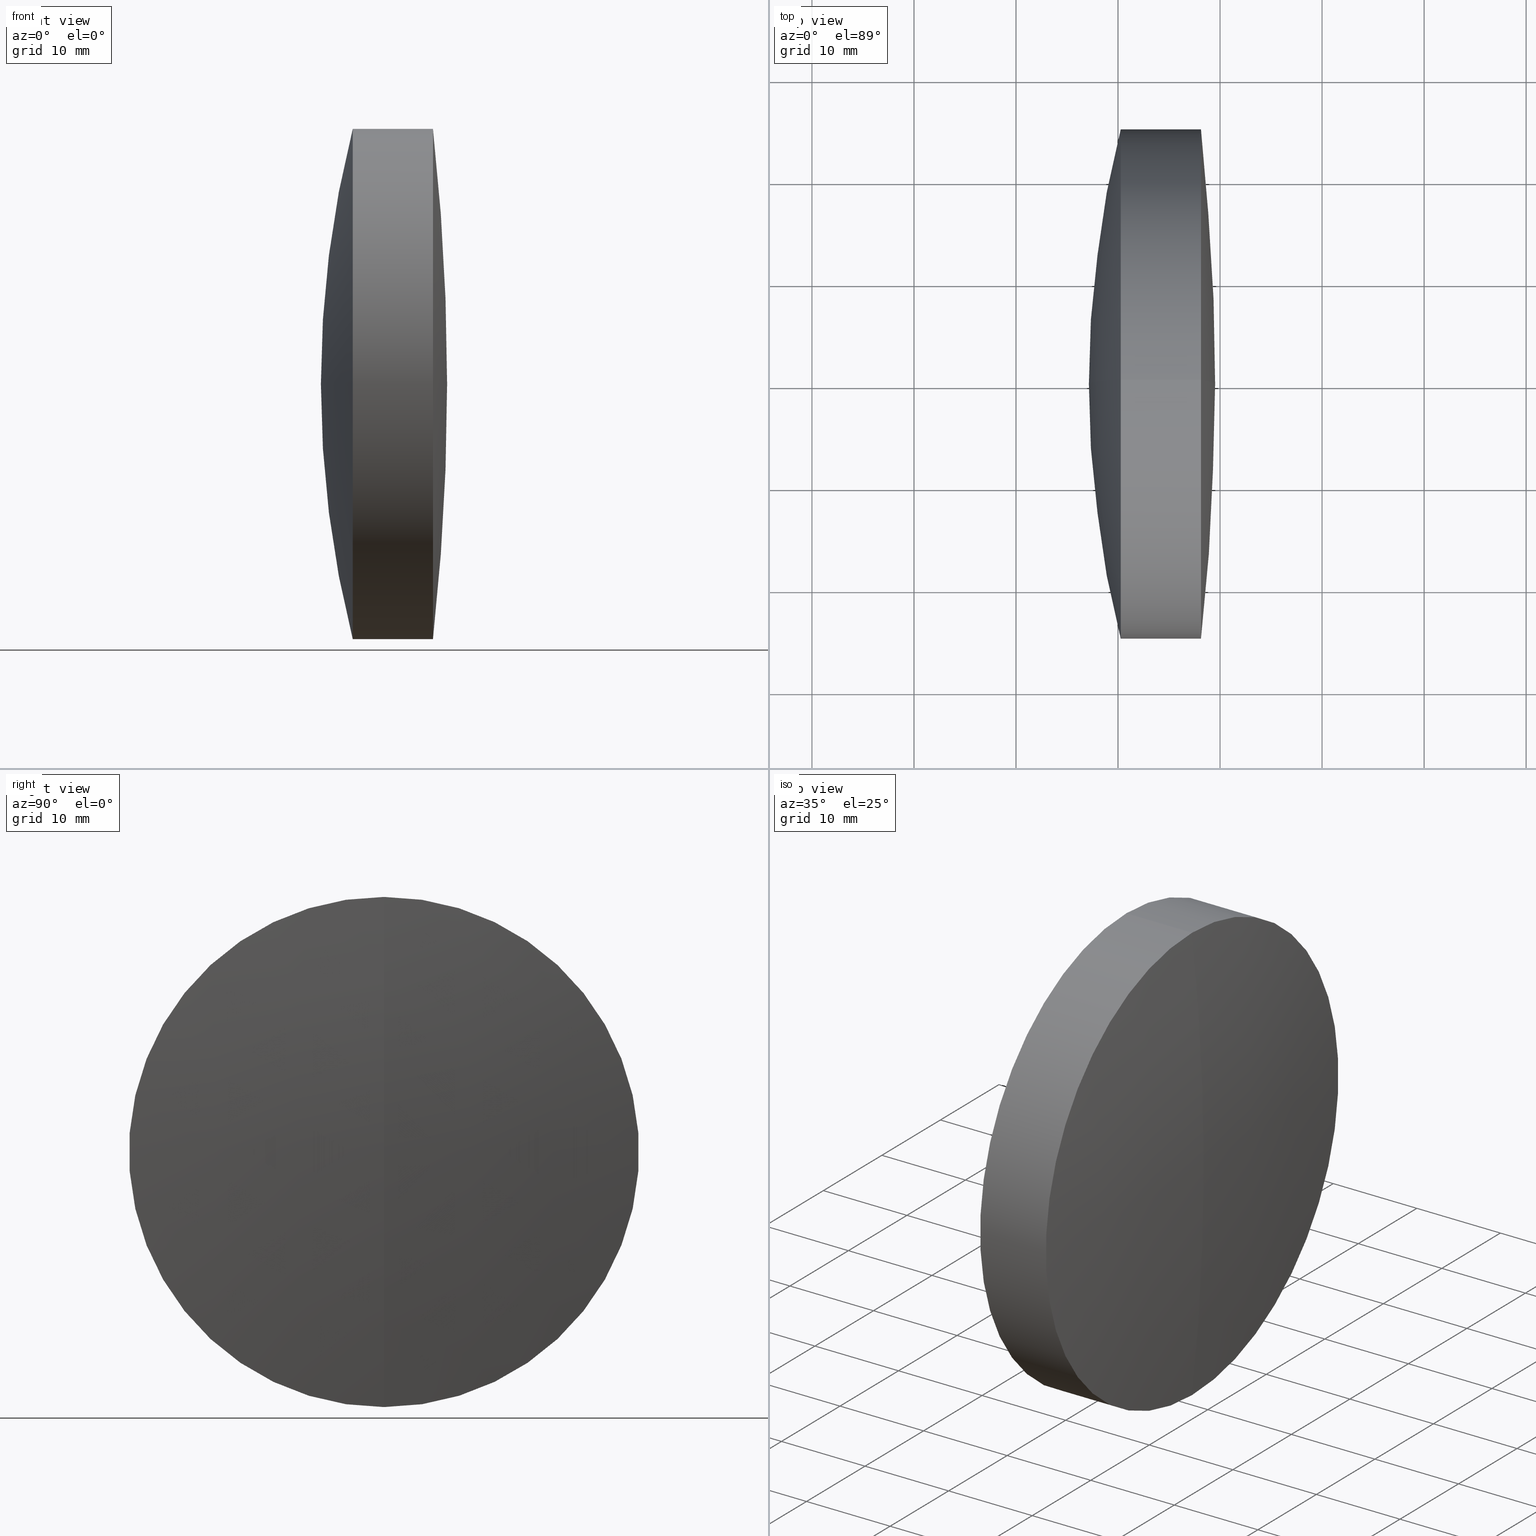
[diagram: canonical four-view strip — front | top / right | iso, engineering-drawing reading convention]
A machine part, canonical four-view strip (front | top / right | iso — engineering-drawing reading convention). The complete STEP part file that produces these views, byte-faithful:
ISO-10303-21;
HEADER;
FILE_DESCRIPTION (( 'STEP AP214' ),
    '1' );
FILE_NAME ('145080.STEP',
    '2019-05-16T05:03:50',
    ( 'user' ),
    ( '΢���й�' ),
    'SwSTEP 2.0',
    'SolidWorks 2016',
    '' );
FILE_SCHEMA (( 'AUTOMOTIVE_DESIGN' ));
ENDSEC;

DATA;
#1 = ADVANCED_FACE ( 'NONE', ( #125 ), #185, .T. ) ;
#2 = CYLINDRICAL_SURFACE ( 'NONE', #263, 24.99999999999997500 ) ;
#3 =( NAMED_UNIT ( * ) SI_UNIT ( $, .STERADIAN. ) SOLID_ANGLE_UNIT ( ) );
#4 = DIRECTION ( 'NONE',  ( 0.0000000000000000000, 0.0000000000000000000, 1.000000000000000000 ) ) ;
#5 = FACE_OUTER_BOUND ( 'NONE', #29, .T. ) ;
#6 = DIRECTION ( 'NONE',  ( 0.0000000000000000000, -1.000000000000000000, 0.0000000000000000000 ) ) ;
#7 = DIRECTION ( 'NONE',  ( -0.0000000000000000000, 1.000000000000000000, 1.224646799147353200E-016 ) ) ;
#8 = CARTESIAN_POINT ( 'NONE',  ( 232.7655238104919100, 0.0000000000000000000, 0.0000000000000000000 ) ) ;
#9 = EDGE_CURVE ( 'NONE', #106, #64, #21, .T. ) ;
#10 =( NAMED_UNIT ( * ) SI_UNIT ( $, .STERADIAN. ) SOLID_ANGLE_UNIT ( ) );
#11 = CARTESIAN_POINT ( 'NONE',  ( 328.8517151953939200, 0.0000000000000000000, -8.224809557768397600E-014 ) ) ;
#12 = MANIFOLD_SOLID_BREP ( '��ת3', #151 ) ;
#13 = DIRECTION ( 'NONE',  ( 0.0000000000000000000, 0.0000000000000000000, -1.000000000000000000 ) ) ;
#14 = EDGE_LOOP ( 'NONE', ( #250, #194, #217, #342 ) ) ;
#15 = CARTESIAN_POINT ( 'NONE',  ( 124.5233095260452400, 0.0000000000000000000, 24.99999999999997500 ) ) ;
#16 = EDGE_CURVE ( 'NONE', #106, #280, #146, .T. ) ;
#17 = FACE_OUTER_BOUND ( 'NONE', #42, .T. ) ;
#18 = DIRECTION ( 'NONE',  ( -1.000000000000000000, -0.0000000000000000000, -0.0000000000000000000 ) ) ;
#19 = ORIENTED_EDGE ( 'NONE', *, *, #9, .F. ) ;
#20 = CIRCLE ( 'NONE', #294, 226.2409999999999900 ) ;
#21 = CIRCLE ( 'NONE', #259, 101.7070000000000400 ) ;
#22 = EDGE_CURVE ( 'NONE', #116, #274, #266, .T. ) ;
#23 = DIRECTION ( 'NONE',  ( 0.0000000000000000000, 0.0000000000000000000, 1.000000000000000000 ) ) ;
#24 = EDGE_LOOP ( 'NONE', ( #39, #34, #187 ) ) ;
#25 = FACE_OUTER_BOUND ( 'NONE', #197, .T. ) ;
#26 = DIRECTION ( 'NONE',  ( 0.0000000000000000000, 0.0000000000000000000, 1.000000000000000000 ) ) ;
#27 = ADVANCED_FACE ( 'NONE', ( #59 ), #87, .F. ) ;
#28 = CARTESIAN_POINT ( 'NONE',  ( -0.5519199926577972300, 0.0000000000000000000, 0.0000000000000000000 ) ) ;
#29 = EDGE_LOOP ( 'NONE', ( #159, #244, #322 ) ) ;
#30 = SHAPE_DEFINITION_REPRESENTATION ( #122, #245 ) ;
#31 = EDGE_CURVE ( 'NONE', #327, #144, #329, .T. ) ;
#32 = ORIENTED_EDGE ( 'NONE', *, *, #224, .F. ) ;
#33 = SURFACE_STYLE_USAGE ( .BOTH. , #100 ) ;
#34 = ORIENTED_EDGE ( 'NONE', *, *, #343, .T. ) ;
#35 = AXIS2_PLACEMENT_3D ( 'NONE', #92, #93, #95 ) ;
#36 = CLOSED_SHELL ( 'NONE', ( #222, #82, #277, #110, #251, #52 ) ) ;
#37 = CARTESIAN_POINT ( 'NONE',  ( 232.7655238104919400, 0.0000000000000000000, 0.0000000000000000000 ) ) ;
#38 = CYLINDRICAL_SURFACE ( 'NONE', #109, 24.99999999999995000 ) ;
#39 = ORIENTED_EDGE ( 'NONE', *, *, #22, .F. ) ;
#40 = CARTESIAN_POINT ( 'NONE',  ( 161.3467151953938700, 0.0000000000000000000, 7.400657500588618300E-015 ) ) ;
#41 = CARTESIAN_POINT ( 'NONE',  ( 239.5147151953938500, 0.0000000000000000000, 1.385326582429481700E-014 ) ) ;
#42 = EDGE_LOOP ( 'NONE', ( #333, #232, #150 ) ) ;
#43 = EDGE_CURVE ( 'NONE', #144, #280, #223, .T. ) ;
#44 = CARTESIAN_POINT ( 'NONE',  ( 232.7655238104919100, 3.061616997868378700E-015, -24.99999999999995400 ) ) ;
#45 = FACE_OUTER_BOUND ( 'NONE', #24, .T. ) ;
#46 = LINE ( 'NONE', #238, #182 ) ;
#47 = MECHANICAL_DESIGN_GEOMETRIC_PRESENTATION_REPRESENTATION (  '', ( #58 ), #233 ) ;
#48 = APPLICATION_CONTEXT ( 'automotive_design' ) ;
#49 =( LENGTH_UNIT ( ) NAMED_UNIT ( * ) SI_UNIT ( .MILLI., .METRE. ) );
#50 = DIRECTION ( 'NONE',  ( -1.000000000000000000, -0.0000000000000000000, -0.0000000000000000000 ) ) ;
#51 = EDGE_CURVE ( 'NONE', #308, #144, #62, .T. ) ;
#52 = ADVANCED_FACE ( 'NONE', ( #344 ), #192, .T. ) ;
#53 = SURFACE_STYLE_USAGE ( .BOTH. , #258 ) ;
#54 = FILL_AREA_STYLE_COLOUR ( '', #136 ) ;
#55 = DIRECTION ( 'NONE',  ( 0.0000000000000000000, 0.0000000000000000000, 1.000000000000000000 ) ) ;
#56 = DIRECTION ( 'NONE',  ( 0.0000000000000000000, 0.0000000000000000000, 1.000000000000000000 ) ) ;
#57 = VECTOR ( 'NONE', #156, 1000.000000000000000 ) ;
#58 = STYLED_ITEM ( 'NONE', ( #324 ), #12 ) ;
#59 = FACE_OUTER_BOUND ( 'NONE', #111, .T. ) ;
#60 = CARTESIAN_POINT ( 'NONE',  ( 238.1292022998895300, 0.0000000000000000000, 0.0000000000000000000 ) ) ;
#61 = APPLICATION_PROTOCOL_DEFINITION ( 'draft international standard', 'automotive_design', 1998, #94 ) ;
#62 = CIRCLE ( 'NONE', #247, 24.99999999999997200 ) ;
#63 = DIRECTION ( 'NONE',  ( -1.000000000000000000, -0.0000000000000000000, -0.0000000000000000000 ) ) ;
#64 = VERTEX_POINT ( 'NONE', #73 ) ;
#65 = DIRECTION ( 'NONE',  ( 0.0000000000000000000, 0.0000000000000000000, 1.000000000000000000 ) ) ;
#66 = AXIS2_PLACEMENT_3D ( 'NONE', #180, #6, #13 ) ;
#67 = CARTESIAN_POINT ( 'NONE',  ( -0.5519199926577972300, 0.0000000000000000000, 0.0000000000000000000 ) ) ;
#68 = DIRECTION ( 'NONE',  ( -1.000000000000000000, -0.0000000000000000000, -0.0000000000000000000 ) ) ;
#69 = VECTOR ( 'NONE', #206, 1000.000000000000000 ) ;
#70 = COLOUR_RGB ( '',1.000000000000000000, 1.000000000000000000, 1.000000000000000000 ) ;
#71 = DIRECTION ( 'NONE',  ( 0.0000000000000000000, 0.0000000000000000000, -1.000000000000000000 ) ) ;
#72 = EDGE_CURVE ( 'NONE', #260, #272, #74, .T. ) ;
#73 = CARTESIAN_POINT ( 'NONE',  ( 227.1447151953938700, 0.0000000000000000000, -7.602033797763998700E-014 ) ) ;
#74 = CIRCLE ( 'NONE', #221, 24.99999999999997200 ) ;
#75 = SURFACE_STYLE_FILL_AREA ( #255 ) ;
#76 = DIRECTION ( 'NONE',  ( -1.000000000000000000, -0.0000000000000000000, -0.0000000000000000000 ) ) ;
#77 = DIRECTION ( 'NONE',  ( 0.0000000000000000000, 1.000000000000000000, 0.0000000000000000000 ) ) ;
#78 = ORIENTED_EDGE ( 'NONE', *, *, #31, .T. ) ;
#79 = DIRECTION ( 'NONE',  ( 0.0000000000000000000, -1.000000000000000000, 0.0000000000000000000 ) ) ;
#80 = ORIENTED_EDGE ( 'NONE', *, *, #183, .F. ) ;
#81 = CARTESIAN_POINT ( 'NONE',  ( 161.3467151953938700, 0.0000000000000000000, 7.400657500588618300E-015 ) ) ;
#82 = ADVANCED_FACE ( 'NONE', ( #25 ), #2, .T. ) ;
#83 = DIRECTION ( 'NONE',  ( 0.0000000000000000000, 1.000000000000000000, 0.0000000000000000000 ) ) ;
#84 =( LENGTH_UNIT ( ) NAMED_UNIT ( * ) SI_UNIT ( .MILLI., .METRE. ) );
#85 = ORIENTED_EDGE ( 'NONE', *, *, #43, .F. ) ;
#86 = AXIS2_PLACEMENT_3D ( 'NONE', #173, #337, #316 ) ;
#87 = SPHERICAL_SURFACE ( 'NONE', #86, 75.66800000000000600 ) ;
#88 = CIRCLE ( 'NONE', #291, 24.99999999999997500 ) ;
#89 = PRESENTATION_LAYER_ASSIGNMENT (  '', '', ( #58 ) ) ;
#90 = FILL_AREA_STYLE ('',( #54 ) ) ;
#91 =( LENGTH_UNIT ( ) NAMED_UNIT ( * ) SI_UNIT ( .MILLI., .METRE. ) );
#92 = CARTESIAN_POINT ( 'NONE',  ( 161.3467151953938700, 0.0000000000000000000, 7.400657500588618300E-015 ) ) ;
#93 = DIRECTION ( 'NONE',  ( -0.0000000000000000000, 1.000000000000000000, 1.224646799147353200E-016 ) ) ;
#94 = APPLICATION_CONTEXT ( 'automotive_design' ) ;
#95 = DIRECTION ( 'NONE',  ( 0.0000000000000000000, -1.224646799147353500E-016, 1.000000000000000000 ) ) ;
#96 = EDGE_CURVE ( 'NONE', #280, #64, #199, .T. ) ;
#97 = DIRECTION ( 'NONE',  ( 0.0000000000000000000, 0.0000000000000000000, 1.000000000000000000 ) ) ;
#98 = CARTESIAN_POINT ( 'NONE',  ( 124.5233095260452400, 0.0000000000000000000, 0.0000000000000000000 ) ) ;
#99 = SPHERICAL_SURFACE ( 'NONE', #178, 226.2409999999999900 ) ;
#100 = SURFACE_SIDE_STYLE ('',( #285 ) ) ;
#101 = FACE_OUTER_BOUND ( 'NONE', #211, .T. ) ;
#102 = ORIENTED_EDGE ( 'NONE', *, *, #51, .F. ) ;
#103 = AXIS2_PLACEMENT_3D ( 'NONE', #134, #139, #152 ) ;
#104 = ORIENTED_EDGE ( 'NONE', *, *, #96, .F. ) ;
#105 =( NAMED_UNIT ( * ) PLANE_ANGLE_UNIT ( ) SI_UNIT ( $, .RADIAN. ) );
#106 = VERTEX_POINT ( 'NONE', #188 ) ;
#107 = CARTESIAN_POINT ( 'NONE',  ( 124.5233095260452400, 3.061616997868379900E-015, -24.99999999999997500 ) ) ;
#108 = DIRECTION ( 'NONE',  ( 0.0000000000000000000, 0.0000000000000000000, 1.000000000000000000 ) ) ;
#109 = AXIS2_PLACEMENT_3D ( 'NONE', #28, #279, #55 ) ;
#110 = ADVANCED_FACE ( 'NONE', ( #278 ), #127, .T. ) ;
#111 = EDGE_LOOP ( 'NONE', ( #268, #325, #205 ) ) ;
#112 = CYLINDRICAL_SURFACE ( 'NONE', #170, 24.99999999999995000 ) ;
#113 = DIRECTION ( 'NONE',  ( -1.000000000000000000, -0.0000000000000000000, -0.0000000000000000000 ) ) ;
#114 = PRODUCT ( '145080', '145080', '', ( #123 ) ) ;
#115 = ORIENTED_EDGE ( 'NONE', *, *, #149, .F. ) ;
#116 = VERTEX_POINT ( 'NONE', #41 ) ;
#117 = DIRECTION ( 'NONE',  ( -1.000000000000000000, -0.0000000000000000000, -0.0000000000000000000 ) ) ;
#118 = VERTEX_POINT ( 'NONE', #290 ) ;
#119 = UNCERTAINTY_MEASURE_WITH_UNIT (LENGTH_MEASURE( 1.000000000000000100E-005 ), #84, 'distance_accuracy_value', 'NONE');
#120 = DIRECTION ( 'NONE',  ( 0.0000000000000000000, 0.0000000000000000000, 1.000000000000000000 ) ) ;
#121 = AXIS2_PLACEMENT_3D ( 'NONE', #249, #305, #311 ) ;
#122 = PRODUCT_DEFINITION_SHAPE ( 'NONE', 'NONE',  #218 ) ;
#123 = PRODUCT_CONTEXT ( 'NONE', #94, 'mechanical' ) ;
#124 = CARTESIAN_POINT ( 'NONE',  ( 230.2651347242161800, 0.0000000000000000000, 24.99999999999996800 ) ) ;
#125 = FACE_OUTER_BOUND ( 'NONE', #328, .T. ) ;
#126 = AXIS2_PLACEMENT_3D ( 'NONE', #315, #208, #212 ) ;
#127 = SPHERICAL_SURFACE ( 'NONE', #330, 101.7070000000000400 ) ;
#128 = VECTOR ( 'NONE', #113, 1000.000000000000000 ) ;
#129 =( NAMED_UNIT ( * ) SI_UNIT ( $, .STERADIAN. ) SOLID_ANGLE_UNIT ( ) );
#130 = ORIENTED_EDGE ( 'NONE', *, *, #9, .T. ) ;
#131 = AXIS2_PLACEMENT_3D ( 'NONE', #300, #282, #289 ) ;
#132 = CARTESIAN_POINT ( 'NONE',  ( 328.8517151953939200, 0.0000000000000000000, -8.224809557768397600E-014 ) ) ;
#133 = SPHERICAL_SURFACE ( 'NONE', #203, 75.66800000000002100 ) ;
#134 = CARTESIAN_POINT ( 'NONE',  ( 161.3467151953938700, 0.0000000000000000000, 7.400657500588618300E-015 ) ) ;
#135 = CARTESIAN_POINT ( 'NONE',  ( 0.0000000000000000000, 0.0000000000000000000, 0.0000000000000000000 ) ) ;
#136 = COLOUR_RGB ( '',1.000000000000000000, 1.000000000000000000, 1.000000000000000000 ) ;
#137 = CIRCLE ( 'NONE', #158, 24.99999999999997200 ) ;
#138 = LINE ( 'NONE', #157, #57 ) ;
#139 = DIRECTION ( 'NONE',  ( -0.0000000000000000000, 1.000000000000000000, 1.224646799147353200E-016 ) ) ;
#140 = AXIS2_PLACEMENT_3D ( 'NONE', #98, #117, #120 ) ;
#141 = ORIENTED_EDGE ( 'NONE', *, *, #265, .F. ) ;
#142 = DIRECTION ( 'NONE',  ( 0.0000000000000000000, 1.000000000000000000, 0.0000000000000000000 ) ) ;
#143 = ADVANCED_FACE ( 'NONE', ( #17 ), #248, .F. ) ;
#144 = VERTEX_POINT ( 'NONE', #234 ) ;
#145 = EDGE_CURVE ( 'NONE', #283, #260, #161, .T. ) ;
#146 = CIRCLE ( 'NONE', #164, 24.99999999999997500 ) ;
#147 = ORIENTED_EDGE ( 'NONE', *, *, #269, .F. ) ;
#148 = CARTESIAN_POINT ( 'NONE',  ( 238.1292022998895300, 0.0000000000000000000, 0.0000000000000000000 ) ) ;
#149 = EDGE_CURVE ( 'NONE', #272, #260, #137, .T. ) ;
#150 = ORIENTED_EDGE ( 'NONE', *, *, #72, .T. ) ;
#151 = CLOSED_SHELL ( 'NONE', ( #1, #191, #27, #143, #189, #163 ) ) ;
#152 = DIRECTION ( 'NONE',  ( 0.0000000000000000000, -1.224646799147353500E-016, 1.000000000000000000 ) ) ;
#153 = CARTESIAN_POINT ( 'NONE',  ( 232.7655238104919400, 3.061616997868379500E-015, -24.99999999999997200 ) ) ;
#154 = CARTESIAN_POINT ( 'NONE',  ( 232.7655238104919100, 0.0000000000000000000, 24.99999999999996100 ) ) ;
#155 = ORIENTED_EDGE ( 'NONE', *, *, #302, .T. ) ;
#156 = DIRECTION ( 'NONE',  ( -1.000000000000000000, -0.0000000000000000000, -0.0000000000000000000 ) ) ;
#157 = CARTESIAN_POINT ( 'NONE',  ( -0.5519199926577972300, 3.061616997868376700E-015, -24.99999999999995000 ) ) ;
#158 = AXIS2_PLACEMENT_3D ( 'NONE', #8, #18, #23 ) ;
#159 = ORIENTED_EDGE ( 'NONE', *, *, #31, .F. ) ;
#160 = CARTESIAN_POINT ( 'NONE',  ( 230.2651347242161800, 0.0000000000000000000, 0.0000000000000000000 ) ) ;
#161 = CIRCLE ( 'NONE', #131, 75.66800000000000600 ) ;
#162 = DIRECTION ( 'NONE',  ( -1.000000000000000000, -0.0000000000000000000, -0.0000000000000000000 ) ) ;
#163 = ADVANCED_FACE ( 'NONE', ( #45 ), #99, .T. ) ;
#164 = AXIS2_PLACEMENT_3D ( 'NONE', #347, #68, #204 ) ;
#165 = DIRECTION ( 'NONE',  ( 0.0000000000000000000, 1.000000000000000000, 0.0000000000000000000 ) ) ;
#166 = DIRECTION ( 'NONE',  ( 0.0000000000000000000, 0.0000000000000000000, 1.000000000000000000 ) ) ;
#167 = DIRECTION ( 'NONE',  ( 0.0000000000000000000, 0.0000000000000000000, 1.000000000000000000 ) ) ;
#168 =( NAMED_UNIT ( * ) PLANE_ANGLE_UNIT ( ) SI_UNIT ( $, .RADIAN. ) );
#169 = CARTESIAN_POINT ( 'NONE',  ( 237.0147151953939000, 0.0000000000000000000, 1.203398620048271500E-014 ) ) ;
#170 = AXIS2_PLACEMENT_3D ( 'NONE', #67, #76, #56 ) ;
#171 = ORIENTED_EDGE ( 'NONE', *, *, #343, .F. ) ;
#172 = FILL_AREA_STYLE_COLOUR ( '', #70 ) ;
#173 = CARTESIAN_POINT ( 'NONE',  ( 161.3467151953938700, 0.0000000000000000000, 7.400657500588618300E-015 ) ) ;
#174 = FILL_AREA_STYLE_COLOUR ( '', #246 ) ;
#175 = DIRECTION ( 'NONE',  ( 0.0000000000000000000, 0.0000000000000000000, 1.000000000000000000 ) ) ;
#176 = ORIENTED_EDGE ( 'NONE', *, *, #224, .T. ) ;
#177 =( NAMED_UNIT ( * ) PLANE_ANGLE_UNIT ( ) SI_UNIT ( $, .RADIAN. ) );
#178 = AXIS2_PLACEMENT_3D ( 'NONE', #314, #83, #26 ) ;
#179 = UNCERTAINTY_MEASURE_WITH_UNIT (LENGTH_MEASURE( 1.000000000000000100E-005 ), #49, 'distance_accuracy_value', 'NONE');
#180 = CARTESIAN_POINT ( 'NONE',  ( 161.3467151953938700, 0.0000000000000000000, 7.400657500588618300E-015 ) ) ;
#181 = UNCERTAINTY_MEASURE_WITH_UNIT (LENGTH_MEASURE( 1.000000000000000100E-005 ), #91, 'distance_accuracy_value', 'NONE');
#182 = VECTOR ( 'NONE', #286, 1000.000000000000000 ) ;
#183 = EDGE_CURVE ( 'NONE', #118, #274, #307, .T. ) ;
#184 = CIRCLE ( 'NONE', #103, 75.66800000000000600 ) ;
#185 = SPHERICAL_SURFACE ( 'NONE', #121, 226.2409999999999900 ) ;
#186 = AXIS2_PLACEMENT_3D ( 'NONE', #242, #165, #167 ) ;
#187 = ORIENTED_EDGE ( 'NONE', *, *, #302, .F. ) ;
#188 = CARTESIAN_POINT ( 'NONE',  ( 230.2651347242161800, 3.061616997868379100E-015, -25.00000000000005000 ) ) ;
#189 = ADVANCED_FACE ( 'NONE', ( #254 ), #38, .T. ) ;
#190 =( NAMED_UNIT ( * ) SI_UNIT ( $, .STERADIAN. ) SOLID_ANGLE_UNIT ( ) );
#191 = ADVANCED_FACE ( 'NONE', ( #264 ), #112, .T. ) ;
#192 = SPHERICAL_SURFACE ( 'NONE', #326, 75.66800000000002100 ) ;
#193 =( NAMED_UNIT ( * ) PLANE_ANGLE_UNIT ( ) SI_UNIT ( $, .RADIAN. ) );
#194 = ORIENTED_EDGE ( 'NONE', *, *, #269, .T. ) ;
#195 = CARTESIAN_POINT ( 'NONE',  ( 13.27371519539385900, 0.0000000000000000000, 0.0000000000000000000 ) ) ;
#196 =( LENGTH_UNIT ( ) NAMED_UNIT ( * ) SI_UNIT ( .MILLI., .METRE. ) );
#197 = EDGE_LOOP ( 'NONE', ( #292, #176, #141, #85 ) ) ;
#198 = SURFACE_STYLE_USAGE ( .BOTH. , #207 ) ;
#199 = CIRCLE ( 'NONE', #273, 101.7070000000000400 ) ;
#200 = ORIENTED_EDGE ( 'NONE', *, *, #310, .T. ) ;
#201 = ORIENTED_EDGE ( 'NONE', *, *, #22, .T. ) ;
#202 = PRODUCT_RELATED_PRODUCT_CATEGORY ( 'part', '', ( #114 ) ) ;
#203 = AXIS2_PLACEMENT_3D ( 'NONE', #81, #77, #97 ) ;
#204 = DIRECTION ( 'NONE',  ( 0.0000000000000000000, 0.0000000000000000000, 1.000000000000000000 ) ) ;
#205 = ORIENTED_EDGE ( 'NONE', *, *, #149, .T. ) ;
#206 = DIRECTION ( 'NONE',  ( -1.000000000000000000, -0.0000000000000000000, -0.0000000000000000000 ) ) ;
#207 = SURFACE_SIDE_STYLE ('',( #336 ) ) ;
#208 = DIRECTION ( 'NONE',  ( -0.0000000000000000000, 1.000000000000000000, 1.224646799147353200E-016 ) ) ;
#209 = ORIENTED_EDGE ( 'NONE', *, *, #16, .F. ) ;
#210 = CIRCLE ( 'NONE', #35, 75.66800000000002100 ) ;
#211 = EDGE_LOOP ( 'NONE', ( #320, #130, #104 ) ) ;
#212 = DIRECTION ( 'NONE',  ( 0.0000000000000000000, -1.224646799147353200E-016, 1.000000000000000000 ) ) ;
#213 = DIRECTION ( 'NONE',  ( -1.000000000000000000, -0.0000000000000000000, -0.0000000000000000000 ) ) ;
#214 = FILL_AREA_STYLE ('',( #174 ) ) ;
#215 = EDGE_CURVE ( 'NONE', #327, #308, #210, .T. ) ;
#216 = DIRECTION ( 'NONE',  ( 0.0000000000000000000, 0.0000000000000000000, 1.000000000000000000 ) ) ;
#217 = ORIENTED_EDGE ( 'NONE', *, *, #72, .F. ) ;
#218 = PRODUCT_DEFINITION ( 'δ֪', '', #226, #275 ) ;
#219 = CARTESIAN_POINT ( 'NONE',  ( 238.1292022998895300, 3.061616997868375200E-015, -24.99999999999992900 ) ) ;
#220 = CYLINDRICAL_SURFACE ( 'NONE', #140, 24.99999999999997500 ) ;
#221 = AXIS2_PLACEMENT_3D ( 'NONE', #281, #213, #166 ) ;
#222 = ADVANCED_FACE ( 'NONE', ( #5 ), #133, .T. ) ;
#223 = LINE ( 'NONE', #15, #69 ) ;
#224 = EDGE_CURVE ( 'NONE', #308, #106, #237, .T. ) ;
#225 = CARTESIAN_POINT ( 'NONE',  ( 328.8517151953939200, 0.0000000000000000000, -8.224809557768397600E-014 ) ) ;
#226 = PRODUCT_DEFINITION_FORMATION_WITH_SPECIFIED_SOURCE ( '�κ�', '', #114, .NOT_KNOWN. ) ;
#227 = AXIS2_PLACEMENT_3D ( 'NONE', #148, #235, #216 ) ;
#228 = EDGE_LOOP ( 'NONE', ( #147, #155, #200, #115 ) ) ;
#229 = CARTESIAN_POINT ( 'NONE',  ( 232.7655238104919400, 0.0000000000000000000, 0.0000000000000000000 ) ) ;
#230 = PRESENTATION_STYLE_ASSIGNMENT (( #33 ) ) ;
#231 = DIRECTION ( 'NONE',  ( 0.0000000000000000000, 1.000000000000000000, 0.0000000000000000000 ) ) ;
#232 = ORIENTED_EDGE ( 'NONE', *, *, #145, .T. ) ;
#233 =( GEOMETRIC_REPRESENTATION_CONTEXT ( 3 ) GLOBAL_UNCERTAINTY_ASSIGNED_CONTEXT ( ( #119 ) ) GLOBAL_UNIT_ASSIGNED_CONTEXT ( ( #84, #168, #3 ) ) REPRESENTATION_CONTEXT ( 'NONE', 'WORKASPACE' ) );
#234 = CARTESIAN_POINT ( 'NONE',  ( 232.7655238104919400, 0.0000000000000000000, 24.99999999999997200 ) ) ;
#235 = DIRECTION ( 'NONE',  ( -1.000000000000000000, -0.0000000000000000000, -0.0000000000000000000 ) ) ;
#236 = DIRECTION ( 'NONE',  ( 0.0000000000000000000, 0.0000000000000000000, 1.000000000000000000 ) ) ;
#237 = LINE ( 'NONE', #107, #128 ) ;
#238 = CARTESIAN_POINT ( 'NONE',  ( -0.5519199926577972300, 0.0000000000000000000, 24.99999999999995000 ) ) ;
#239 = STYLED_ITEM ( 'NONE', ( #306 ), #309 ) ;
#240 = DIRECTION ( 'NONE',  ( 0.0000000000000000000, 0.0000000000000000000, 1.000000000000000000 ) ) ;
#241 = EDGE_CURVE ( 'NONE', #283, #272, #184, .T. ) ;
#242 = CARTESIAN_POINT ( 'NONE',  ( 328.8517151953939200, 0.0000000000000000000, -8.224809557768397600E-014 ) ) ;
#243 = UNCERTAINTY_MEASURE_WITH_UNIT (LENGTH_MEASURE( 1.000000000000000100E-005 ), #196, 'distance_accuracy_value', 'NONE');
#244 = ORIENTED_EDGE ( 'NONE', *, *, #215, .T. ) ;
#245 = ADVANCED_BREP_SHAPE_REPRESENTATION ( '145080', ( #309, #12, #262 ), #271 ) ;
#246 = COLOUR_RGB ( '',1.000000000000000000, 1.000000000000000000, 1.000000000000000000 ) ;
#247 = AXIS2_PLACEMENT_3D ( 'NONE', #37, #334, #287 ) ;
#248 = SPHERICAL_SURFACE ( 'NONE', #335, 75.66800000000000600 ) ;
#249 = CARTESIAN_POINT ( 'NONE',  ( 13.27371519539385900, 0.0000000000000000000, 0.0000000000000000000 ) ) ;
#250 = ORIENTED_EDGE ( 'NONE', *, *, #183, .T. ) ;
#251 = ADVANCED_FACE ( 'NONE', ( #270 ), #220, .T. ) ;
#252 = DIRECTION ( 'NONE',  ( 0.0000000000000000000, -1.224646799147353200E-016, 1.000000000000000000 ) ) ;
#253 = MECHANICAL_DESIGN_GEOMETRIC_PRESENTATION_REPRESENTATION (  '', ( #239 ), #323 ) ;
#254 = FACE_OUTER_BOUND ( 'NONE', #228, .T. ) ;
#255 = FILL_AREA_STYLE ('',( #172 ) ) ;
#256 = ORIENTED_EDGE ( 'NONE', *, *, #43, .T. ) ;
#257 = ORIENTED_EDGE ( 'NONE', *, *, #215, .F. ) ;
#258 = SURFACE_SIDE_STYLE ('',( #75 ) ) ;
#259 = AXIS2_PLACEMENT_3D ( 'NONE', #225, #7, #252 ) ;
#260 = VERTEX_POINT ( 'NONE', #154 ) ;
#261 = DIRECTION ( 'NONE',  ( 0.0000000000000000000, 0.0000000000000000000, -1.000000000000000000 ) ) ;
#262 = AXIS2_PLACEMENT_3D ( 'NONE', #135, #236, #332 ) ;
#263 = AXIS2_PLACEMENT_3D ( 'NONE', #284, #267, #175 ) ;
#264 = FACE_OUTER_BOUND ( 'NONE', #14, .T. ) ;
#265 = EDGE_CURVE ( 'NONE', #280, #106, #88, .T. ) ;
#266 = CIRCLE ( 'NONE', #126, 226.2409999999999900 ) ;
#267 = DIRECTION ( 'NONE',  ( -1.000000000000000000, -0.0000000000000000000, -0.0000000000000000000 ) ) ;
#268 = ORIENTED_EDGE ( 'NONE', *, *, #145, .F. ) ;
#269 = EDGE_CURVE ( 'NONE', #274, #272, #138, .T. ) ;
#270 = FACE_OUTER_BOUND ( 'NONE', #301, .T. ) ;
#271 =( GEOMETRIC_REPRESENTATION_CONTEXT ( 3 ) GLOBAL_UNCERTAINTY_ASSIGNED_CONTEXT ( ( #179 ) ) GLOBAL_UNIT_ASSIGNED_CONTEXT ( ( #49, #177, #10 ) ) REPRESENTATION_CONTEXT ( 'NONE', 'WORKASPACE' ) );
#272 = VERTEX_POINT ( 'NONE', #44 ) ;
#273 = AXIS2_PLACEMENT_3D ( 'NONE', #132, #297, #261 ) ;
#274 = VERTEX_POINT ( 'NONE', #219 ) ;
#275 = PRODUCT_DEFINITION_CONTEXT ( 'detailed design', #48, 'design' ) ;
#276 =( GEOMETRIC_REPRESENTATION_CONTEXT ( 3 ) GLOBAL_UNCERTAINTY_ASSIGNED_CONTEXT ( ( #181 ) ) GLOBAL_UNIT_ASSIGNED_CONTEXT ( ( #91, #105, #129 ) ) REPRESENTATION_CONTEXT ( 'NONE', 'WORKASPACE' ) );
#277 = ADVANCED_FACE ( 'NONE', ( #101 ), #318, .T. ) ;
#278 = FACE_OUTER_BOUND ( 'NONE', #288, .T. ) ;
#279 = DIRECTION ( 'NONE',  ( -1.000000000000000000, -0.0000000000000000000, -0.0000000000000000000 ) ) ;
#280 = VERTEX_POINT ( 'NONE', #124 ) ;
#281 = CARTESIAN_POINT ( 'NONE',  ( 232.7655238104919100, 0.0000000000000000000, 0.0000000000000000000 ) ) ;
#282 = DIRECTION ( 'NONE',  ( 0.0000000000000000000, -1.000000000000000000, 0.0000000000000000000 ) ) ;
#283 = VERTEX_POINT ( 'NONE', #303 ) ;
#284 = CARTESIAN_POINT ( 'NONE',  ( 124.5233095260452400, 0.0000000000000000000, 0.0000000000000000000 ) ) ;
#285 = SURFACE_STYLE_FILL_AREA ( #90 ) ;
#286 = DIRECTION ( 'NONE',  ( -1.000000000000000000, -0.0000000000000000000, -0.0000000000000000000 ) ) ;
#287 = DIRECTION ( 'NONE',  ( 0.0000000000000000000, 0.0000000000000000000, 1.000000000000000000 ) ) ;
#288 = EDGE_LOOP ( 'NONE', ( #19, #346, #331 ) ) ;
#289 = DIRECTION ( 'NONE',  ( 0.0000000000000000000, 0.0000000000000000000, -1.000000000000000000 ) ) ;
#290 = CARTESIAN_POINT ( 'NONE',  ( 238.1292022998895300, 0.0000000000000000000, 24.99999999999992900 ) ) ;
#291 = AXIS2_PLACEMENT_3D ( 'NONE', #160, #162, #240 ) ;
#292 = ORIENTED_EDGE ( 'NONE', *, *, #319, .T. ) ;
#293 = ORIENTED_EDGE ( 'NONE', *, *, #51, .T. ) ;
#294 = AXIS2_PLACEMENT_3D ( 'NONE', #195, #79, #71 ) ;
#295 = EDGE_LOOP ( 'NONE', ( #257, #78, #102 ) ) ;
#296 = PRESENTATION_LAYER_ASSIGNMENT (  '', '', ( #239 ) ) ;
#297 = DIRECTION ( 'NONE',  ( 0.0000000000000000000, -1.000000000000000000, 0.0000000000000000000 ) ) ;
#298 = DIRECTION ( 'NONE',  ( 0.0000000000000000000, 1.000000000000000000, 0.0000000000000000000 ) ) ;
#299 = PRESENTATION_LAYER_ASSIGNMENT (  '', '', ( #304 ) ) ;
#300 = CARTESIAN_POINT ( 'NONE',  ( 161.3467151953938700, 0.0000000000000000000, 7.400657500588618300E-015 ) ) ;
#301 = EDGE_LOOP ( 'NONE', ( #32, #293, #256, #209 ) ) ;
#302 = EDGE_CURVE ( 'NONE', #274, #118, #341, .T. ) ;
#303 = CARTESIAN_POINT ( 'NONE',  ( 237.0147151953938800, 0.0000000000000000000, 1.203398620048271500E-014 ) ) ;
#304 = STYLED_ITEM ( 'NONE', ( #230 ), #245 ) ;
#305 = DIRECTION ( 'NONE',  ( 0.0000000000000000000, 1.000000000000000000, 0.0000000000000000000 ) ) ;
#306 = PRESENTATION_STYLE_ASSIGNMENT (( #198 ) ) ;
#307 = CIRCLE ( 'NONE', #339, 24.99999999999992900 ) ;
#308 = VERTEX_POINT ( 'NONE', #153 ) ;
#309 = MANIFOLD_SOLID_BREP ( '��ת1', #36 ) ;
#310 = EDGE_CURVE ( 'NONE', #118, #260, #46, .T. ) ;
#311 = DIRECTION ( 'NONE',  ( 0.0000000000000000000, 0.0000000000000000000, 1.000000000000000000 ) ) ;
#312 = CIRCLE ( 'NONE', #313, 24.99999999999997200 ) ;
#313 = AXIS2_PLACEMENT_3D ( 'NONE', #229, #50, #4 ) ;
#314 = CARTESIAN_POINT ( 'NONE',  ( 13.27371519539385900, 0.0000000000000000000, 0.0000000000000000000 ) ) ;
#315 = CARTESIAN_POINT ( 'NONE',  ( 13.27371519539385900, 0.0000000000000000000, 0.0000000000000000000 ) ) ;
#316 = DIRECTION ( 'NONE',  ( 0.0000000000000000000, 0.0000000000000000000, 1.000000000000000000 ) ) ;
#317 = MECHANICAL_DESIGN_GEOMETRIC_PRESENTATION_REPRESENTATION (  '', ( #304 ), #276 ) ;
#318 = SPHERICAL_SURFACE ( 'NONE', #186, 101.7070000000000400 ) ;
#319 = EDGE_CURVE ( 'NONE', #144, #308, #312, .T. ) ;
#320 = ORIENTED_EDGE ( 'NONE', *, *, #265, .T. ) ;
#321 = DIRECTION ( 'NONE',  ( 0.0000000000000000000, 0.0000000000000000000, 1.000000000000000000 ) ) ;
#322 = ORIENTED_EDGE ( 'NONE', *, *, #319, .F. ) ;
#323 =( GEOMETRIC_REPRESENTATION_CONTEXT ( 3 ) GLOBAL_UNCERTAINTY_ASSIGNED_CONTEXT ( ( #243 ) ) GLOBAL_UNIT_ASSIGNED_CONTEXT ( ( #196, #193, #190 ) ) REPRESENTATION_CONTEXT ( 'NONE', 'WORKASPACE' ) );
#324 = PRESENTATION_STYLE_ASSIGNMENT (( #53 ) ) ;
#325 = ORIENTED_EDGE ( 'NONE', *, *, #241, .T. ) ;
#326 = AXIS2_PLACEMENT_3D ( 'NONE', #40, #231, #345 ) ;
#327 = VERTEX_POINT ( 'NONE', #169 ) ;
#328 = EDGE_LOOP ( 'NONE', ( #171, #201, #80 ) ) ;
#329 = CIRCLE ( 'NONE', #66, 75.66800000000002100 ) ;
#330 = AXIS2_PLACEMENT_3D ( 'NONE', #11, #142, #321 ) ;
#331 = ORIENTED_EDGE ( 'NONE', *, *, #96, .T. ) ;
#332 = DIRECTION ( 'NONE',  ( 1.000000000000000000, 0.0000000000000000000, 0.0000000000000000000 ) ) ;
#333 = ORIENTED_EDGE ( 'NONE', *, *, #241, .F. ) ;
#334 = DIRECTION ( 'NONE',  ( -1.000000000000000000, -0.0000000000000000000, -0.0000000000000000000 ) ) ;
#335 = AXIS2_PLACEMENT_3D ( 'NONE', #340, #298, #108 ) ;
#336 = SURFACE_STYLE_FILL_AREA ( #214 ) ;
#337 = DIRECTION ( 'NONE',  ( 0.0000000000000000000, 1.000000000000000000, 0.0000000000000000000 ) ) ;
#338 = APPLICATION_PROTOCOL_DEFINITION ( 'draft international standard', 'automotive_design', 1998, #48 ) ;
#339 = AXIS2_PLACEMENT_3D ( 'NONE', #60, #63, #65 ) ;
#340 = CARTESIAN_POINT ( 'NONE',  ( 161.3467151953938700, 0.0000000000000000000, 7.400657500588618300E-015 ) ) ;
#341 = CIRCLE ( 'NONE', #227, 24.99999999999992900 ) ;
#342 = ORIENTED_EDGE ( 'NONE', *, *, #310, .F. ) ;
#343 = EDGE_CURVE ( 'NONE', #116, #118, #20, .T. ) ;
#344 = FACE_OUTER_BOUND ( 'NONE', #295, .T. ) ;
#345 = DIRECTION ( 'NONE',  ( 0.0000000000000000000, 0.0000000000000000000, 1.000000000000000000 ) ) ;
#346 = ORIENTED_EDGE ( 'NONE', *, *, #16, .T. ) ;
#347 = CARTESIAN_POINT ( 'NONE',  ( 230.2651347242161800, 0.0000000000000000000, 0.0000000000000000000 ) ) ;
ENDSEC;
END-ISO-10303-21;
